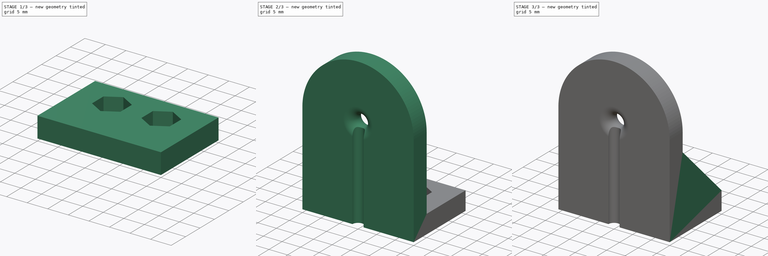
[diagram: build sequence overview — one tinted view per stage of 3, left to right]
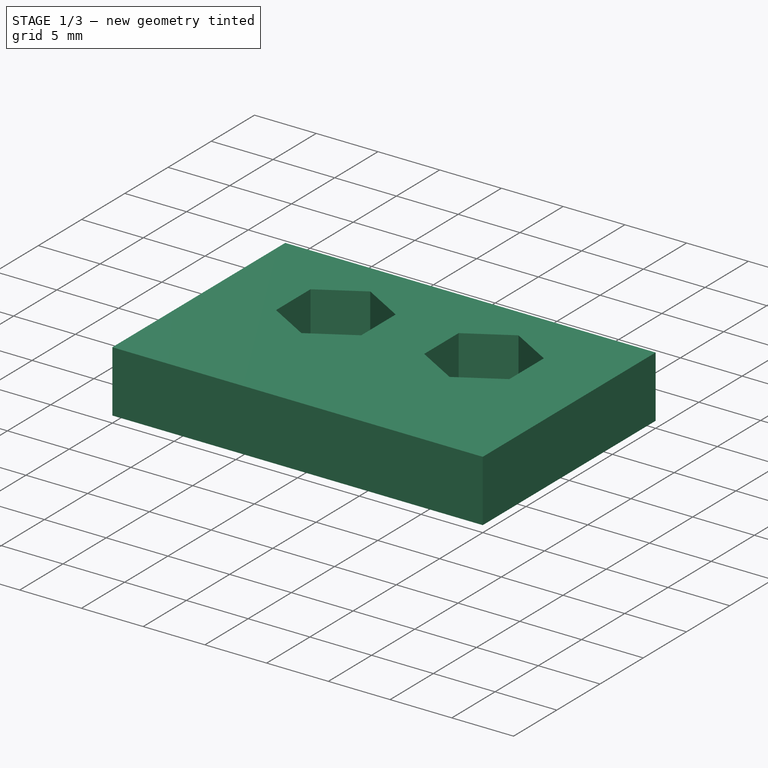
[diagram: stage 1 of 3 — iso view after this stage's code; geometry added in this stage tinted green]
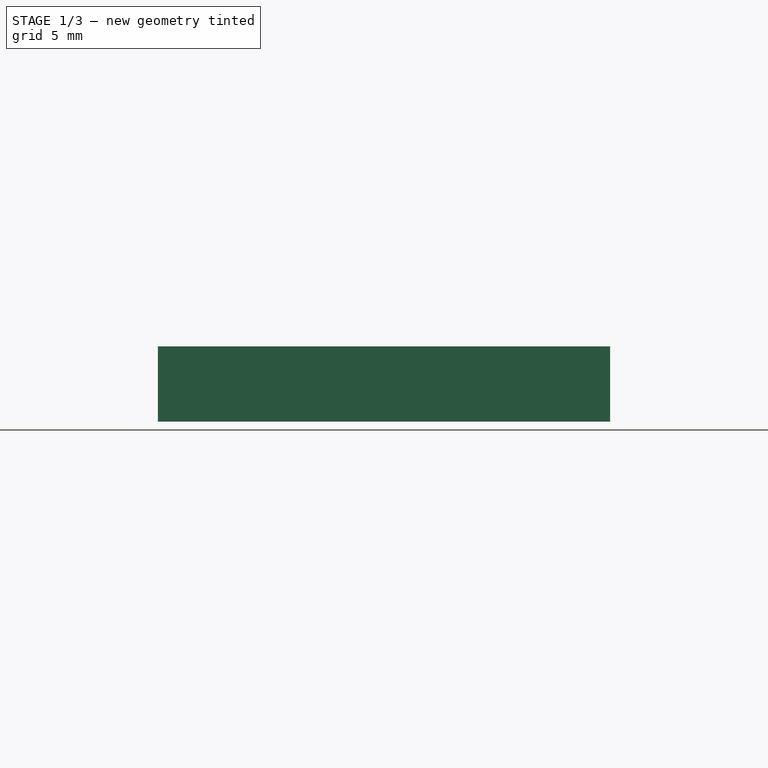
[diagram: stage 1 of 3 — front view after this stage's code; geometry added in this stage tinted green]
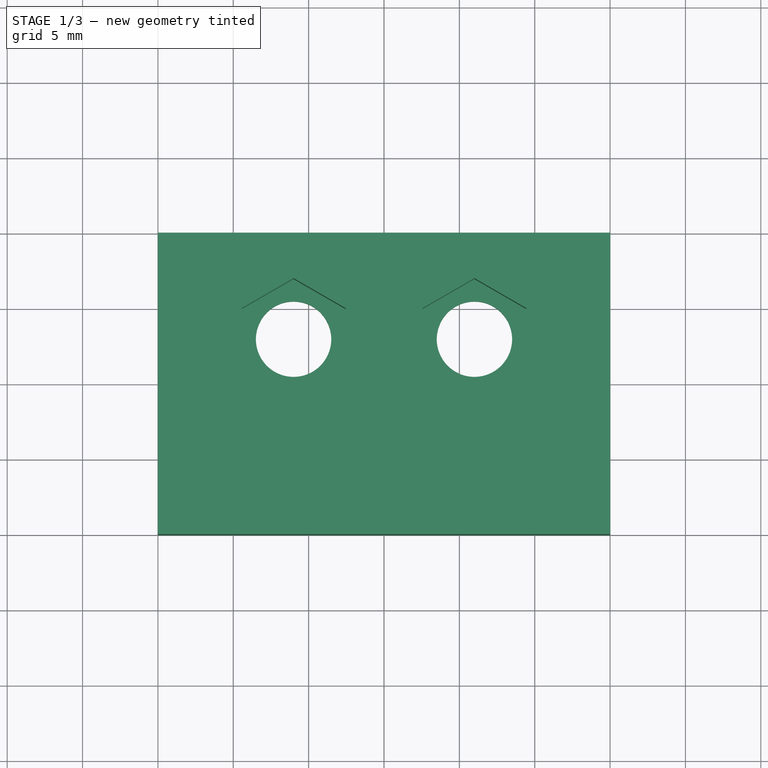
[diagram: stage 1 of 3 — top view after this stage's code; geometry added in this stage tinted green]
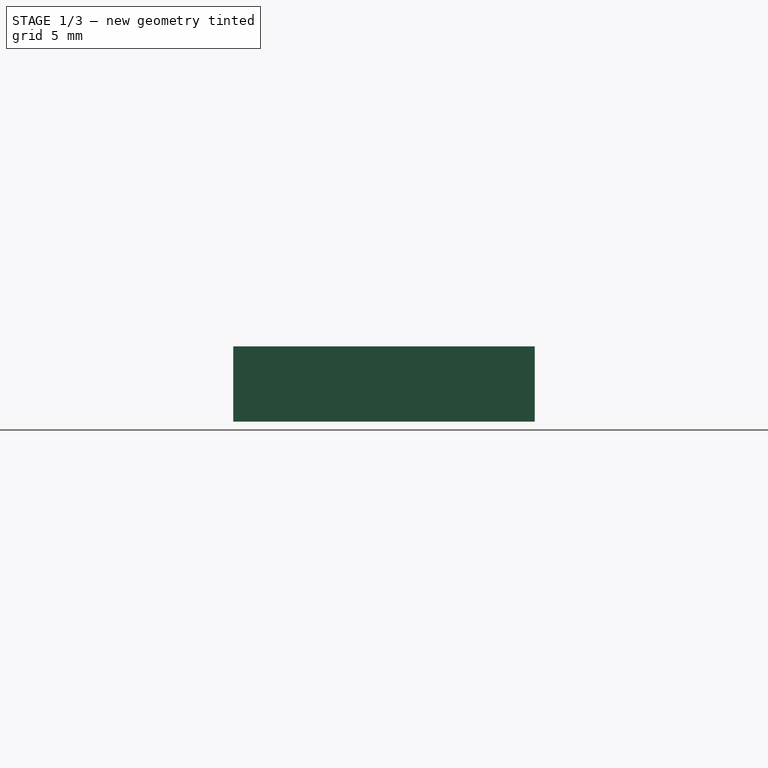
[diagram: stage 1 of 3 — right view after this stage's code; geometry added in this stage tinted green]
FCSTD DOCUMENT  (FreeCAD 0.19R24267 +148 (Git))
Label: WireGuiding
License: All rights reserved
LicenseURL: http://en.wikipedia.org/wiki/All_rights_reserved
objects: Sketcher::SketchObject×6, PartDesign::Pad×3, PartDesign::Pocket×2, PartDesign::Plane×1, PartDesign::Groove×1, PartDesign::Mirrored×1, PartDesign::Body×1
note: 21 computed .brp shape members not serialized (recipe doc carries the construction recipe); baked Part::Feature solids carry a one-line shape summary decoded from their .brp

FEATURE [Sketcher::SketchObject] Sketch
  FullyConstrained = true
  MapMode = 5
  Support = -> [XY_Plane]
  sketch-geometry (6):
    g0: LineSegment StartX=-15 StartY=0 StartZ=0 EndX=15 EndY=1e-16 EndZ=0
    g1: LineSegment StartX=15 StartY=1e-16 StartZ=0 EndX=15 EndY=-20 EndZ=0
    g2: LineSegment StartX=15 StartY=-20 StartZ=0 EndX=-15 EndY=-20 EndZ=0
    g3: LineSegment StartX=-15 StartY=-20 StartZ=0 EndX=-15 EndY=0 EndZ=0
    g4: Circle CenterX=6 CenterY=-7 CenterZ=0 NormalX=0 NormalY=0 NormalZ=1 AngleXU=0 Radius=2.5
    g5: Circle CenterX=-6 CenterY=-7 CenterZ=0 NormalX=0 NormalY=0 NormalZ=1 AngleXU=0 Radius=2.5
  constraints (16):
    c: Coincident(g0,g1)
    c: Coincident(g1,g2)
    c: Coincident(g2,g3)
    c: Coincident(g3,g0)
    c: Horizontal(g2)
    c: Vertical(g1)
    c: Vertical(g3)
    c: PointOnObject(g0,g-1)
    c: Symmetric(g0,g0,g-2)
    c: DistanceX(g0,g0) = 30
    c: DistanceY(g1,g0) = 20
    c: Equal(g5,g4)
    c: Symmetric(g4,g5,g-2)
    c: DistanceX(g-1,g4) = 6
    c: DistanceY(g4,g0) = 7
    c: Radius(g4) = 2.5
FEATURE [PartDesign::Pad] Pad
  Direction = (1,1,1)
  Length = 5
  Length2 = 100
  Profile = -> Sketch
  Refine = true
  Type = 0
FEATURE [Sketcher::SketchObject] Sketch001
  ExternalGeometry = -> [Pad]
  FullyConstrained = true
  MapMode = 5
  Placement = pos=(0,0,5) rot=(0,0,1;0rad)
  Support = -> [Pad]
  sketch-geometry (14):
    g0: LineSegment StartX=9.45 StartY=-5.00814 StartZ=0 EndX=6 EndY=-3.01628 EndZ=0
    g1: LineSegment StartX=6 StartY=-3.01628 StartZ=0 EndX=2.55 EndY=-5.00814 EndZ=0
    g2: LineSegment StartX=2.55 StartY=-5.00814 StartZ=0 EndX=2.55 EndY=-8.99186 EndZ=0
    g3: LineSegment StartX=2.55 StartY=-8.99186 StartZ=0 EndX=6 EndY=-10.9837 EndZ=0
    g4: LineSegment StartX=6 StartY=-10.9837 StartZ=0 EndX=9.45 EndY=-8.99186 EndZ=0
    g5: LineSegment StartX=9.45 StartY=-8.99186 StartZ=0 EndX=9.45 EndY=-5.00814 EndZ=0
    g6: Circle CenterX=6 CenterY=-7 CenterZ=0 NormalX=0 NormalY=0 NormalZ=1 AngleXU=0 Radius=3.98372
    g7: LineSegment StartX=-2.55 StartY=-5.00814 StartZ=0 EndX=-6 EndY=-3.01628 EndZ=0
    g8: LineSegment StartX=-6 StartY=-3.01628 StartZ=0 EndX=-9.45 EndY=-5.00814 EndZ=0
    g9: LineSegment StartX=-9.45 StartY=-5.00814 StartZ=0 EndX=-9.45 EndY=-8.99186 EndZ=0
    g10: LineSegment StartX=-9.45 StartY=-8.99186 StartZ=0 EndX=-6 EndY=-10.9837 EndZ=0
    g11: LineSegment StartX=-6 StartY=-10.9837 StartZ=0 EndX=-2.55 EndY=-8.99186 EndZ=0
    g12: LineSegment StartX=-2.55 StartY=-8.99186 StartZ=0 EndX=-2.55 EndY=-5.00814 EndZ=0
    g13: Circle CenterX=-6 CenterY=-7 CenterZ=0 NormalX=0 NormalY=0 NormalZ=1 AngleXU=0 Radius=3.98372
  constraints (32):
    c: Coincident(g0,g1)
    c: Coincident(g1,g2)
    c: Coincident(g2,g3)
    c: Coincident(g3,g4)
    c: Coincident(g4,g5)
    c: Coincident(g5,g0)
    c: Equal(g0, g1-g5) x5
    c: PointOnObject(g0,g6)
    c: PointOnObject(g1,g6)
    c: PointOnObject(g2,g6)
    c: PointOnObject(g3,g6)
    c: PointOnObject(g4,g6)
    c: PointOnObject(g5,g6)
    c: Coincident(g6,g-3)
    c: Coincident(g7,g8)
    c: Coincident(g8,g9)
    c: Coincident(g9,g10)
    c: Coincident(g10,g11)
    c: Coincident(g11,g12)
    c: Coincident(g12,g7)
    c: Equal(g7, g8-g12) x5
    c: PointOnObject(g7,g13)
    c: PointOnObject(g8,g13)
    c: PointOnObject(g9,g13)
    c: PointOnObject(g10,g13)
    c: PointOnObject(g11,g13)
    c: PointOnObject(g12,g13)
    c: Coincident(g13,g-4)
    c: Vertical(g12)
    c: Vertical(g5)
    c: DistanceX(g9,g11) = 6.9
    c: DistanceX(g2,g4) = 6.9
FEATURE [PartDesign::Pocket] Pocket
  BaseFeature = -> Pad
  Length = 4
  Length2 = 100
  Profile = -> Sketch001
  Refine = true
  Type = 0
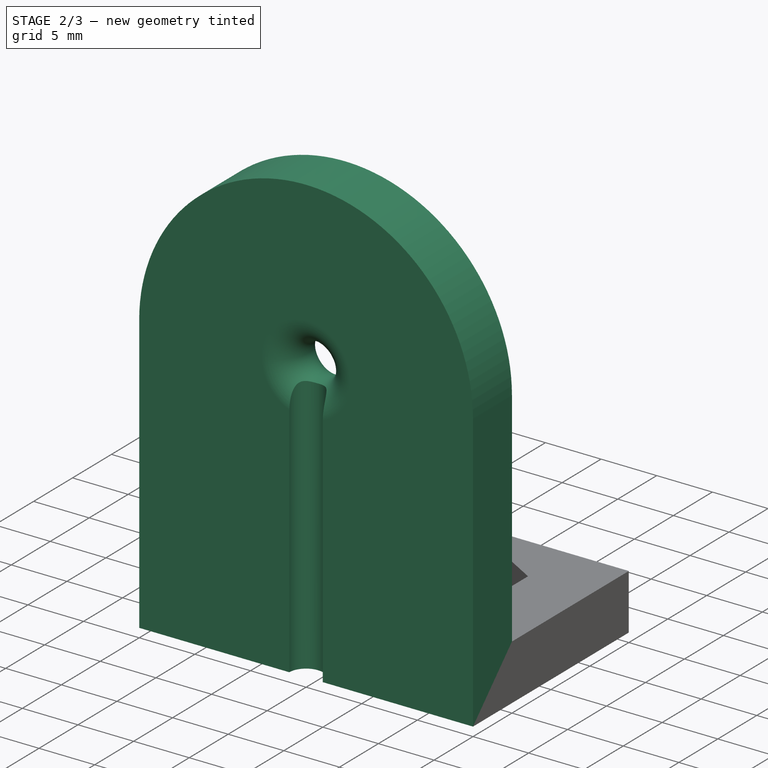
[diagram: stage 2 of 3 — iso view after this stage's code; geometry added in this stage tinted green]
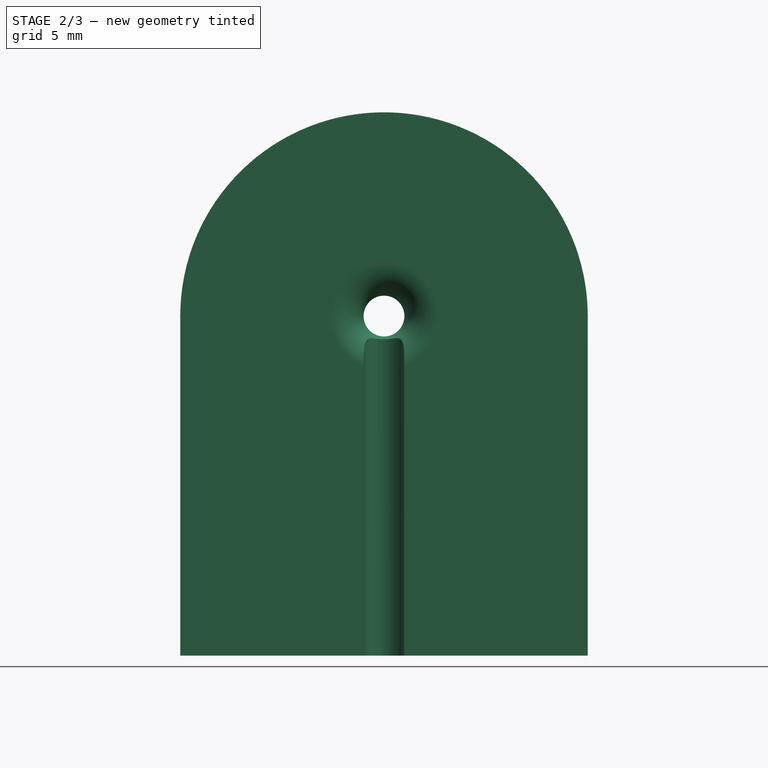
[diagram: stage 2 of 3 — front view after this stage's code; geometry added in this stage tinted green]
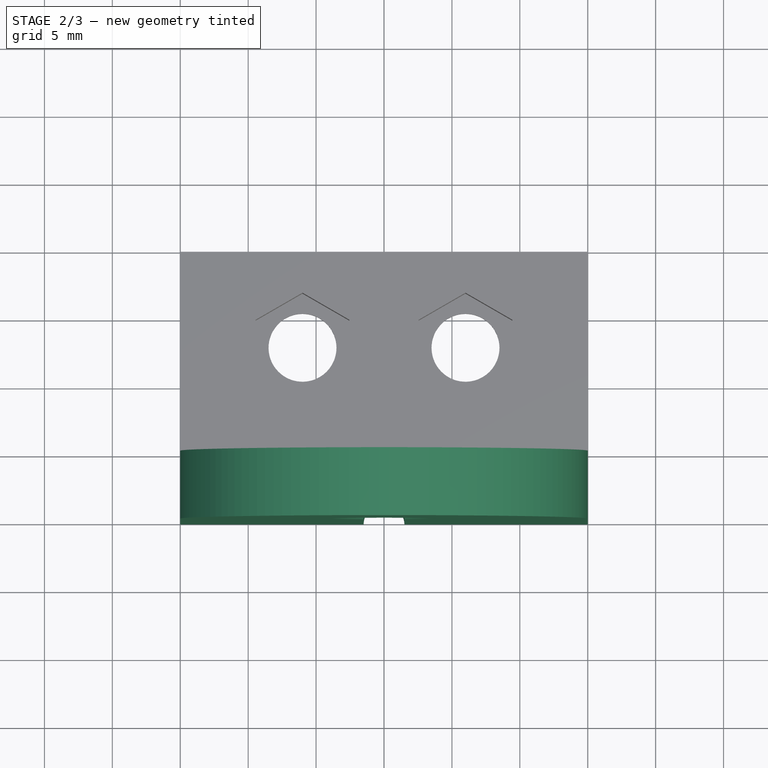
[diagram: stage 2 of 3 — top view after this stage's code; geometry added in this stage tinted green]
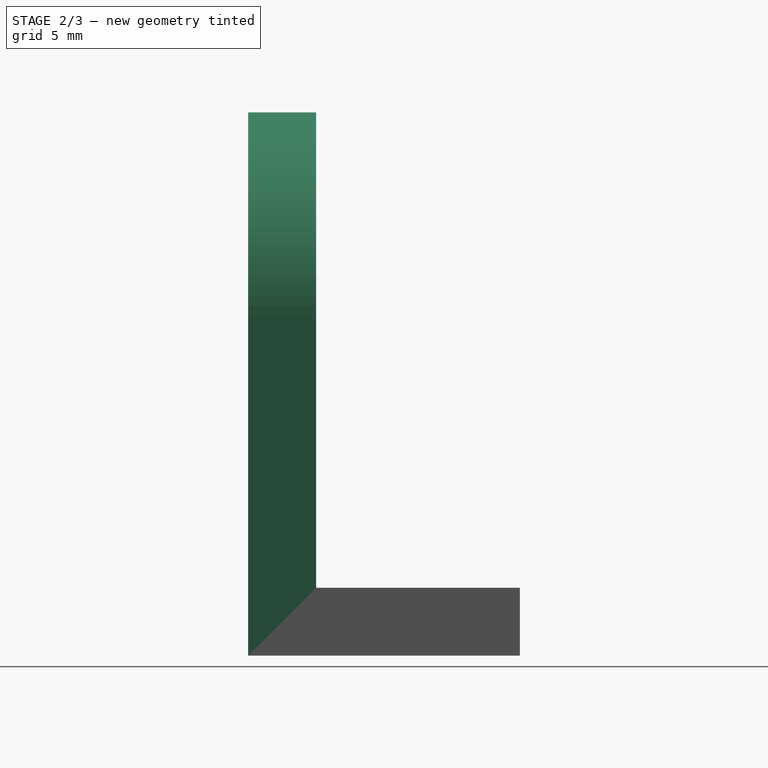
[diagram: stage 2 of 3 — right view after this stage's code; geometry added in this stage tinted green]
FEATURE [Sketcher::SketchObject] Sketch002
  ExternalGeometry = -> [Pocket]
  FullyConstrained = true
  MapMode = 5
  Placement = pos=(0,-20,0) rot=(1,0,0;1.5708rad)
  Support = -> [Pocket]
  sketch-geometry (4):
    g0: LineSegment StartX=-15 StartY=5 StartZ=0 EndX=15 EndY=5 EndZ=0
    g1: LineSegment StartX=15 StartY=5 StartZ=0 EndX=15 EndY=25 EndZ=0
    g2: LineSegment StartX=-15 StartY=25 StartZ=0 EndX=-15 EndY=5 EndZ=0
    g3: ArcOfCircle CenterX=3e-16 CenterY=25 CenterZ=0 NormalX=0 NormalY=0 NormalZ=1 AngleXU=0 Radius=15 StartAngle=0 EndAngle=3.14159
  constraints (10):
    c: Coincident(g0,g1)
    c: Coincident(g2,g0)
    c: Horizontal(g0)
    c: Vertical(g1)
    c: Vertical(g2)
    c: Symmetric(g1,g2,g-2)
    c: Coincident(g0,g-3)
    c: Coincident(g3,g2)
    c: Tangent(g3,g1) = -1.5708
    c: DistanceY(g0,g1) = 20
FEATURE [PartDesign::Pad] Pad001
  BaseFeature = -> Pocket
  Direction = (1,1,1)
  Length = 5
  Length2 = 100
  Profile = -> Sketch002
  Refine = true
  Reversed = true
  Type = 0
FEATURE [PartDesign::Plane] DatumPlane
  AttachmentOffset = pos=(0,0,-25) rot=(0,0,1;0rad)
  Length = 60
  MapMode = 5
  Placement = pos=(0,0,25) rot=(1,0,0;3.14159rad)
  ResizeMode = 0
  Support = -> [Pad001]
  Width = 60
FEATURE [Sketcher::SketchObject] Sketch003
  ExternalGeometry = -> [Pad001]
  FullyConstrained = true
  MapMode = 5
  Placement = pos=(0,0,25) rot=(1,0,0;3.14159rad)
  Support = -> [DatumPlane]
  sketch-geometry (5):
    g0: LineSegment StartX=0 StartY=15 StartZ=0 EndX=0 EndY=20 EndZ=0
    g1: LineSegment StartX=0 StartY=20 StartZ=0 EndX=4 EndY=20 EndZ=0
    g2: LineSegment StartX=0 StartY=15 StartZ=0 EndX=4 EndY=15 EndZ=0
    g3: ArcOfCircle CenterX=4 CenterY=17.5 CenterZ=0 NormalX=0 NormalY=0 NormalZ=1 AngleXU=0 Radius=2.5 StartAngle=1.5708 EndAngle=4.71239
    g4: LineSegment StartX=4 StartY=20 StartZ=0 EndX=4 EndY=15 EndZ=0
  constraints (14):
    c: PointOnObject(g0,g-4)
    c: PointOnObject(g0,g-3)
    c: Symmetric(g-4,g-4,g0)
    c: Coincident(g1,g0)
    c: PointOnObject(g1,g-3)
    c: Coincident(g2,g0)
    c: PointOnObject(g2,g-4)
    c: Equal(g2,g1)
    c: Coincident(g3,g1)
    c: Coincident(g3,g2)
    c: Coincident(g4,g1)
    c: Coincident(g4,g2)
    c: PointOnObject(g3,g4)
    c: DistanceX(g0,g2) = 4
FEATURE [PartDesign::Groove] Groove
  Angle = 360
  Axis = (0,-1,0)
  Base = (0,0,25)
  BaseFeature = -> Pad001
  Profile = -> Sketch003
  ReferenceAxis = -> Sketch003 [V_Axis]
  Refine = true
FEATURE [Sketcher::SketchObject] Sketch004
  ExternalGeometry = -> [Groove]
  FullyConstrained = true
  MapMode = 5
  Placement = pos=(0,0,0) rot=(1,0,0;3.14159rad)
  Support = -> [Groove]
  sketch-geometry (2):
    g0: ArcOfCircle CenterX=0 CenterY=20 CenterZ=0 NormalX=0 NormalY=0 NormalZ=1 AngleXU=0 Radius=1.5 StartAngle=3.14159 EndAngle=6.28319
    g1: LineSegment StartX=-1.5 StartY=20 StartZ=0 EndX=1.5 EndY=20 EndZ=0
  constraints (7):
    c: PointOnObject(g0,g-2)
    c: PointOnObject(g0,g-3)
    c: PointOnObject(g0,g-3)
    c: PointOnObject(g0,g-3)
    c: Radius(g0) = 1.5
    c: Coincident(g1,g0)
    c: Coincident(g1,g0)
FEATURE [PartDesign::Pocket] Pocket001
  BaseFeature = -> Groove
  Length = 0
  Length2 = 100
  Profile = -> Sketch004
  Refine = true
  Type = 3
  UpToFace = -> DatumPlane
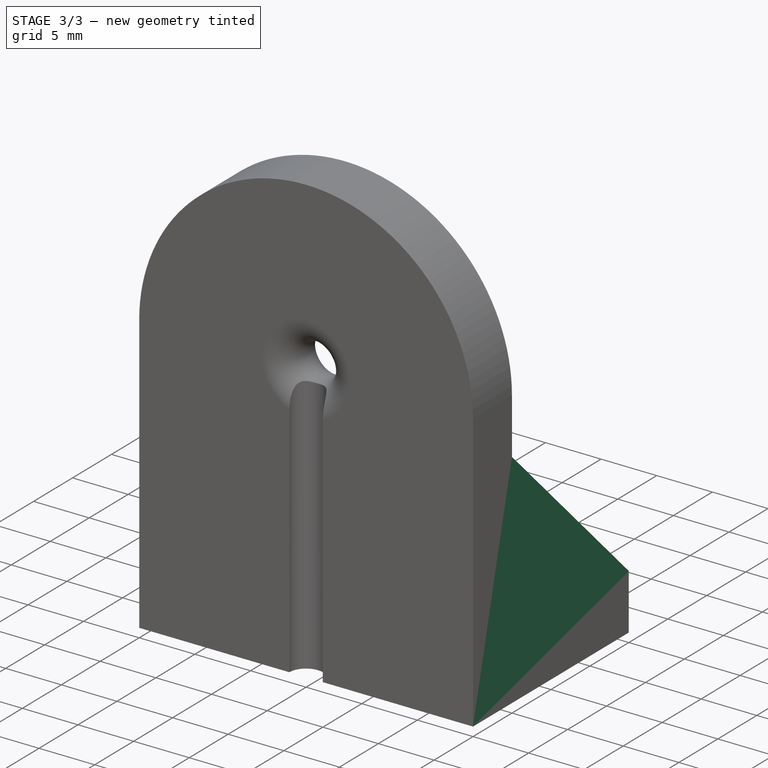
[diagram: stage 3 of 3 — iso view after this stage's code; geometry added in this stage tinted green]
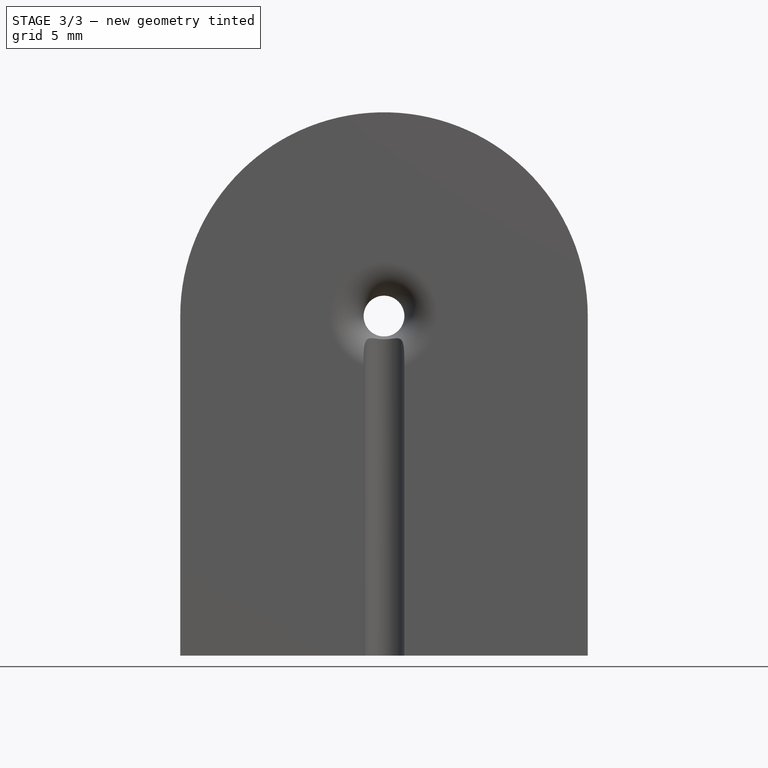
[diagram: stage 3 of 3 — front view after this stage's code; geometry added in this stage tinted green]
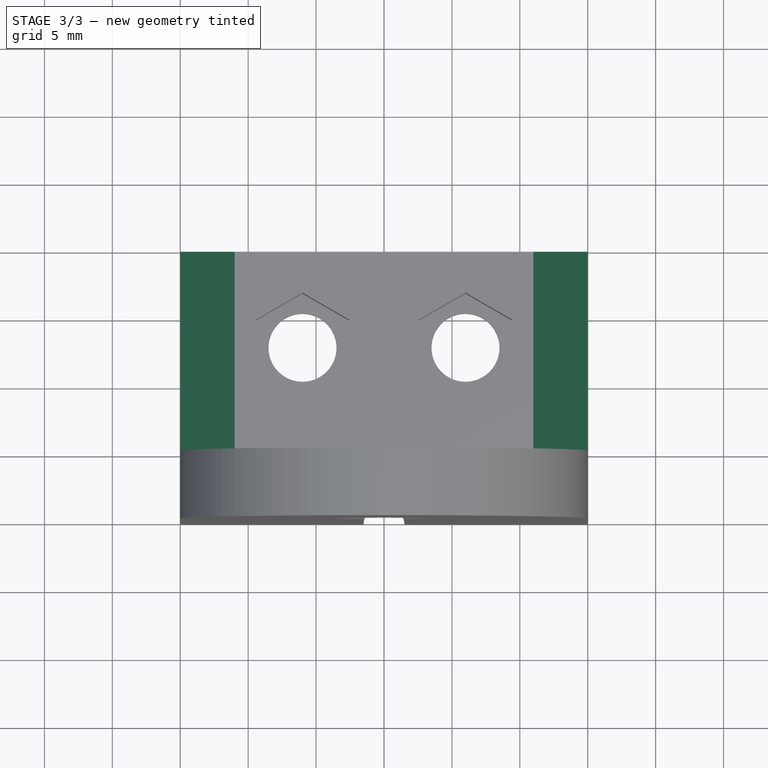
[diagram: stage 3 of 3 — top view after this stage's code; geometry added in this stage tinted green]
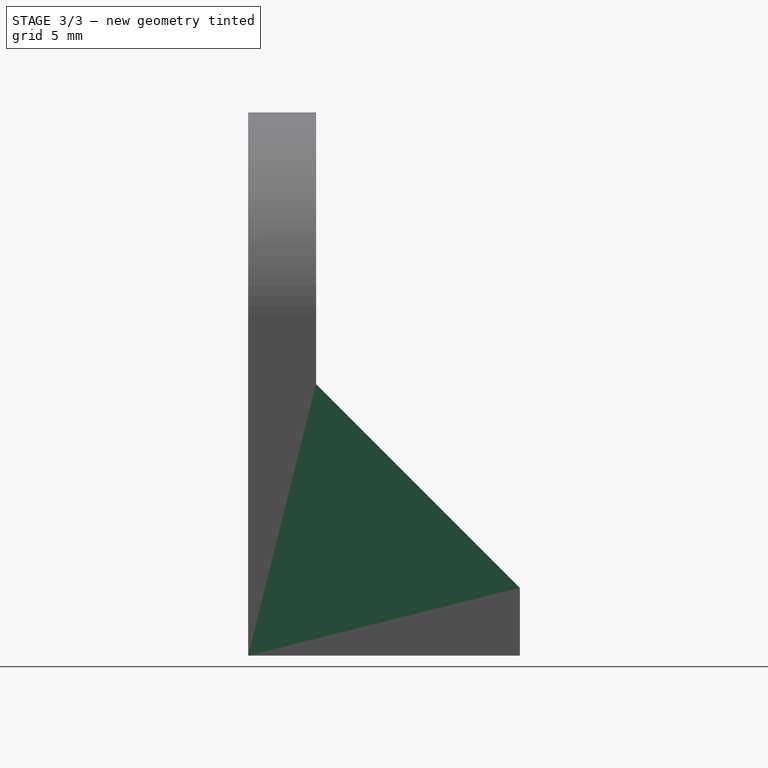
[diagram: stage 3 of 3 — right view after this stage's code; geometry added in this stage tinted green]
FEATURE [Sketcher::SketchObject] Sketch005
  ExternalGeometry = -> [Pocket001]
  FullyConstrained = true
  MapMode = 5
  Placement = pos=(15,0,0) rot=(0.57735,0.57735,0.57735;2.0944rad)
  Support = -> [Pocket001]
  sketch-geometry (3):
    g0: LineSegment StartX=0 StartY=5 StartZ=0 EndX=-15 EndY=20 EndZ=0
    g1: LineSegment StartX=-15 StartY=20 StartZ=0 EndX=-15 EndY=5 EndZ=0
    g2: LineSegment StartX=-15 StartY=5 StartZ=0 EndX=0 EndY=5 EndZ=0
  constraints (7):
    c: Coincident(g-3,g0)
    c: PointOnObject(g0,g-4)
    c: Coincident(g0,g1)
    c: Coincident(g1,g-4)
    c: Coincident(g1,g2)
    c: Coincident(g2,g0)
    c: DistanceY(g1,g0) = 15
FEATURE [PartDesign::Pad] Pad002
  BaseFeature = -> Pocket001
  Direction = (1,1,1)
  Length = 4
  Length2 = 100
  Profile = -> Sketch005
  Refine = true
  Reversed = true
  Type = 0
FEATURE [PartDesign::Mirrored] Mirrored
  BaseFeature = -> Pad002
  MirrorPlane = -> YZ_Plane
  Originals = -> [Pad002]
  Refine = true
FEATURE [PartDesign::Body] Body
  Group = -> [Sketch,Pad,Sketch001,Pocket,Sketch002,Pad001,DatumPlane,Sketch003,Groove,Sketch004,Pocket001,Sketch005,Pad002,Mirrored]
  Origin = -> Origin
  Tip = -> Mirrored
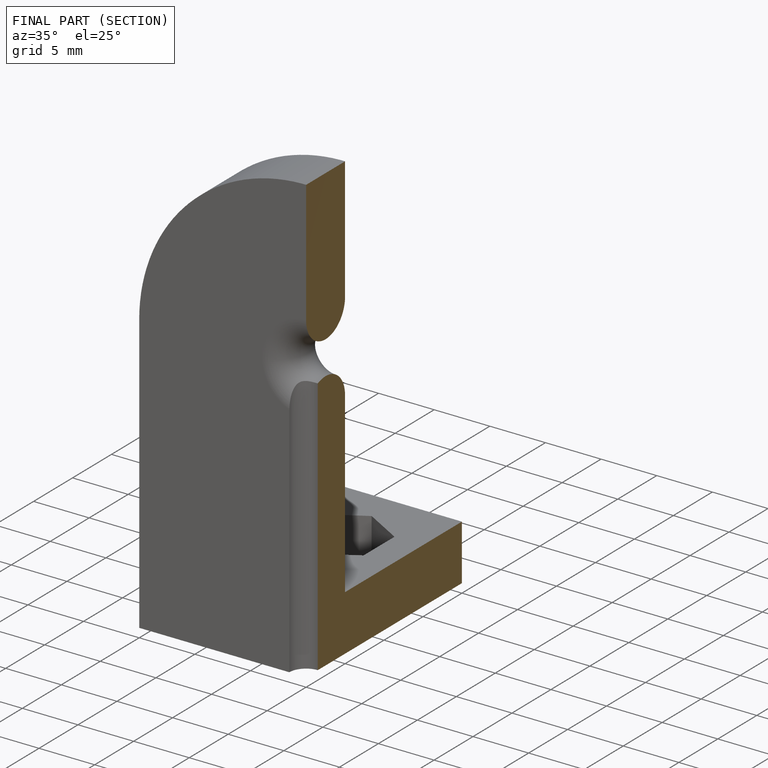
[diagram: finished part — half-section view (interior)]
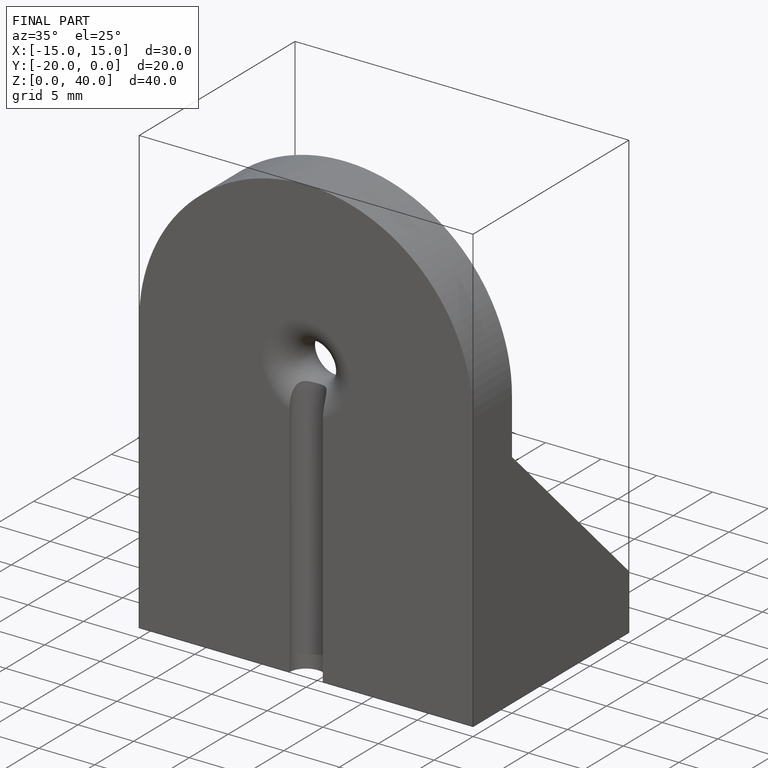
[diagram: finished part — iso view with bounding-box wireframe]
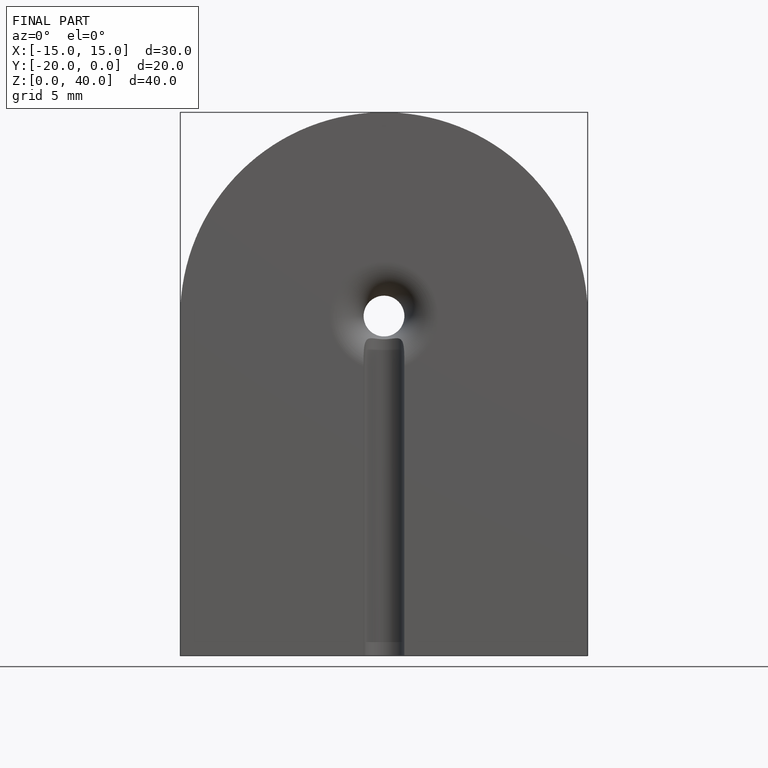
[diagram: finished part — front view with bounding-box wireframe]
